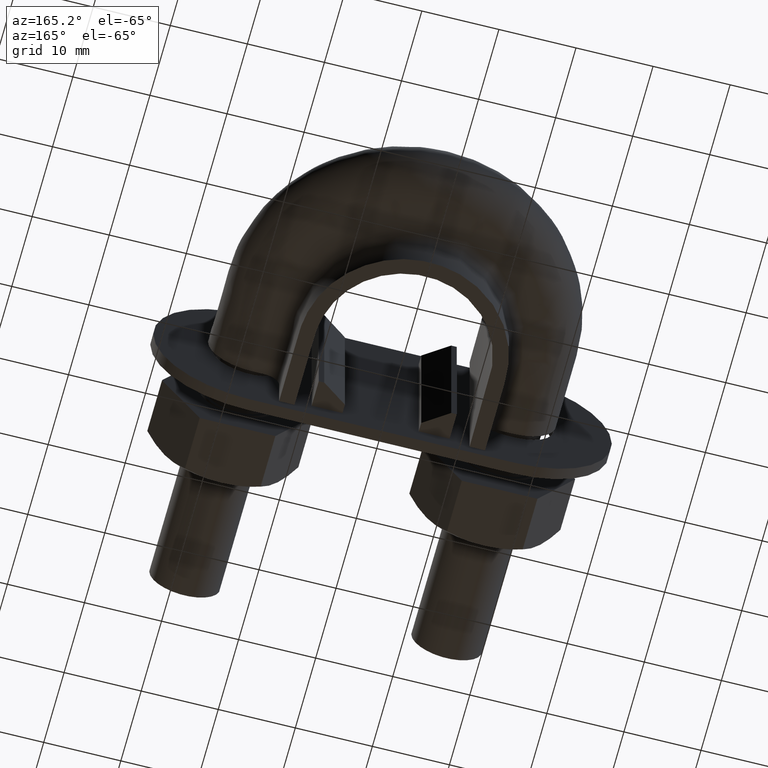
[diagram: clean part render]
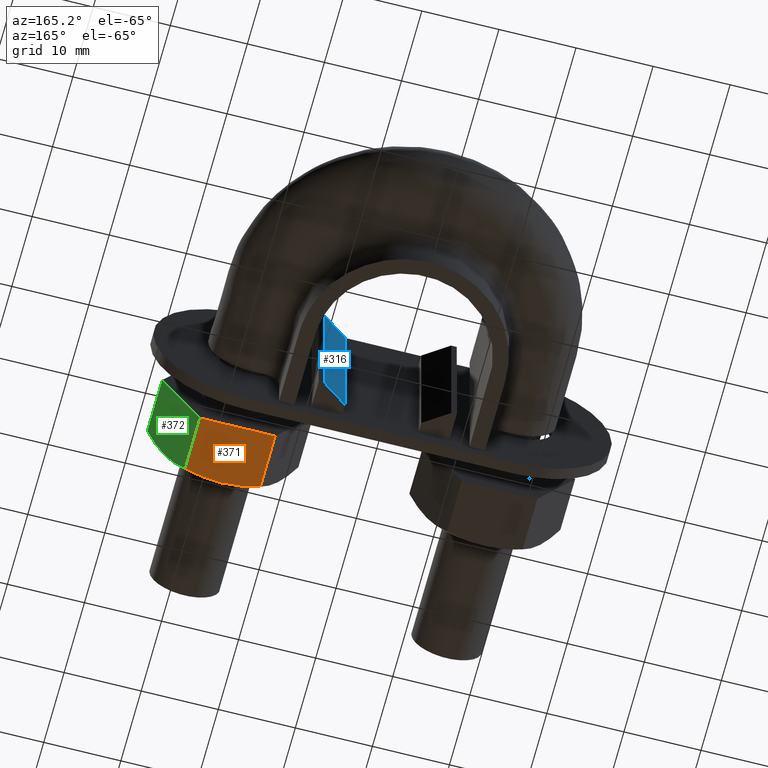
[diagram: same view with three faces highlighted in distinct colors, each labeled with its STEP entity id]
A machine part, auxiliary view with three faces highlighted in distinct colors.
Their STEP definitions:

[orange] entity #371 — the highlighted planar face has unit normal (0, 0, 1).
#371 = ADVANCED_FACE( '', ( #617 ), #618, .F. );
#617 = FACE_OUTER_BOUND( '', #1781, .T. );
#618 = PLANE( '', #1782 );
#1781 = EDGE_LOOP( '', ( #2570, #2571, #2572, #2573, #2574 ) );
#1782 = AXIS2_PLACEMENT_3D( '', #2575, #2576, #2577 );
#2570 = ORIENTED_EDGE( '', *, *, #2861, .F. );
#2571 = ORIENTED_EDGE( '', *, *, #2862, .F. );
#2572 = ORIENTED_EDGE( '', *, *, #2860, .F. );
#2573 = ORIENTED_EDGE( '', *, *, #2840, .F. );
#2574 = ORIENTED_EDGE( '', *, *, #2863, .F. );
#2575 = CARTESIAN_POINT( '', ( 21.9074772608674, 26.0000000000000, -8.50000001572733 ) );
#2576 = DIRECTION( '', ( 3.20504273121358E-009, 3.06151587670611E-016, 1.00000000000000 ) );
#2577 = DIRECTION( '', ( 2.44921270764475E-016, 1.00000000000000, -3.06151588455594E-016 ) );
#2840 = EDGE_CURVE( '', #3222, #3224, #3225, .T. );
#2860 = EDGE_CURVE( '', #3224, #3252, #3254, .F. );
#2861 = EDGE_CURVE( '', #3192, #3255, #3256, .T. );
#2862 = EDGE_CURVE( '', #3252, #3192, #3257, .T. );
#2863 = EDGE_CURVE( '', #3255, #3222, #3258, .T. );
#3192 = VERTEX_POINT( '', #3958 );
#3222 = VERTEX_POINT( '', #4005 );
#3224 = VERTEX_POINT( '', #4007 );
#3225 = LINE( '', #4008, #4009 );
#3252 = VERTEX_POINT( '', #4074 );
#3254 = LINE( '', #4076, #4077 );
#3255 = VERTEX_POINT( '', #4078 );
#3256 = B_SPLINE_CURVE_WITH_KNOTS( '', 3, ( #4079, #4080, #4081, #4082, #4083, #4084 ), .UNSPECIFIED., .F., .F., ( 4, 2, 4 ), ( 0.0156840426092143, 0.0181633795370665, 0.0206427164649186 ), .UNSPECIFIED. );
#3257 = B_SPLINE_CURVE_WITH_KNOTS( '', 3, ( #4085, #4086, #4087, #4088, #4089, #4090 ), .UNSPECIFIED., .F., .F., ( 4, 2, 4 ), ( 0.0107224888714687, 0.0132032657403415, 0.0156840426092143 ), .UNSPECIFIED. );
#3258 = LINE( '', #4091, #4092 );
#3958 = CARTESIAN_POINT( '', ( 16.9999999727571, 18.0000000000013, -8.49999999999866 ) );
#4005 = CARTESIAN_POINT( '', ( 21.8774993320585, 26.0000000000000, -8.50000001563125 ) );
#4007 = CARTESIAN_POINT( '', ( 12.1225006134558, 26.0000000000000, -8.49999998436606 ) );
#4008 = CARTESIAN_POINT( '', ( 7.19999997276027, 26.0000000000000, -8.49999996858924 ) );
#4009 = VECTOR( '', #4424, 999.999999999894 );
#4074 = CARTESIAN_POINT( '', ( 12.1225006134558, 18.7505553499477, -8.49999998436606 ) );
#4076 = CARTESIAN_POINT( '', ( 12.1225006134558, 26.0000000000000, -8.49999998436606 ) );
#4077 = VECTOR( '', #4449, 1000.00000000005 );
#4078 = CARTESIAN_POINT( '', ( 21.8774993320585, 18.7505553499477, -8.50000001563125 ) );
#4079 = CARTESIAN_POINT( '', ( 16.9999999727572, 18.0000000000015, -8.49999999999866 ) );
#4080 = CARTESIAN_POINT( '', ( 17.8345940136287, 18.0000000000015, -8.50000000267356 ) );
#4081 = CARTESIAN_POINT( '', ( 18.6590982459581, 18.0723104611278, -8.50000000531614 ) );
#4082 = CARTESIAN_POINT( '', ( 20.2828073957157, 18.3339943747747, -8.50000001052019 ) );
#4083 = CARTESIAN_POINT( '', ( 21.0838577849830, 18.5225028103106, -8.50000001308759 ) );
#4084 = CARTESIAN_POINT( '', ( 21.8774993320585, 18.7505553499477, -8.50000001563125 ) );
#4085 = CARTESIAN_POINT( '', ( 12.1225006134558, 18.7505553499477, -8.49999998436606 ) );
#4086 = CARTESIAN_POINT( '', ( 12.9171260398174, 18.5222200930427, -8.49999998691287 ) );
#4087 = CARTESIAN_POINT( '', ( 13.7187973504343, 18.3336547117187, -8.49999998948227 ) );
#4088 = CARTESIAN_POINT( '', ( 15.3426188033116, 18.0721149177832, -8.49999999468668 ) );
#4089 = CARTESIAN_POINT( '', ( 16.1649212191459, 18.0000000000015, -8.49999999732219 ) );
#4090 = CARTESIAN_POINT( '', ( 16.9999999727572, 18.0000000000015, -8.49999999999866 ) );
#4091 = CARTESIAN_POINT( '', ( 21.8774993320585, 26.0000000000000, -8.50000001563125 ) );
#4092 = VECTOR( '', #4450, 1000.00000000005 );
#4424 = DIRECTION( '', ( -1.00000000000000, 2.44921271745704E-016, 3.20504273121358E-009 ) );
#4449 = DIRECTION( '', ( 2.44921270764475E-016, 1.00000000000000, -3.06151588455594E-016 ) );
#4450 = DIRECTION( '', ( 2.44921270764475E-016, 1.00000000000000, -3.06151588455594E-016 ) );

[blue] entity #316 — the highlighted planar face has unit normal (-0.5736, 0.8192, 0).
#316 = ADVANCED_FACE( '', ( #500 ), #501, .T. );
#500 = FACE_OUTER_BOUND( '', #1664, .T. );
#501 = PLANE( '', #1665 );
#1664 = EDGE_LOOP( '', ( #2153, #2154, #2155, #2156 ) );
#1665 = AXIS2_PLACEMENT_3D( '', #2157, #2158, #2159 );
#2153 = ORIENTED_EDGE( '', *, *, #2738, .F. );
#2154 = ORIENTED_EDGE( '', *, *, #2737, .F. );
#2155 = ORIENTED_EDGE( '', *, *, #2739, .T. );
#2156 = ORIENTED_EDGE( '', *, *, #2740, .T. );
#2157 = CARTESIAN_POINT( '', ( 8.23474038345670, 35.3999999999955, -10.0000000263941 ) );
#2158 = DIRECTION( '', ( -0.573576436350990, 0.819152044289031, 1.83801571867427E-009 ) );
#2159 = DIRECTION( '', ( 0.819152044289031, 0.573576436350990, -2.62564213630165E-009 ) );
#2737 = EDGE_CURVE( '', #3052, #3050, #3054, .T. );
#2738 = EDGE_CURVE( '', #3050, #3055, #3056, .T. );
#2739 = EDGE_CURVE( '', #3052, #3057, #3058, .T. );
#2740 = EDGE_CURVE( '', #3057, #3055, #3059, .T. );
#3050 = VERTEX_POINT( '', #3688 );
#3052 = VERTEX_POINT( '', #3691 );
#3054 = LINE( '', #3694, #3695 );
#3055 = VERTEX_POINT( '', #3696 );
#3056 = LINE( '', #3697, #3698 );
#3057 = VERTEX_POINT( '', #3699 );
#3058 = LINE( '', #3700, #3701 );
#3059 = LINE( '', #3702, #3703 );
#3688 = CARTESIAN_POINT( '', ( 8.23474044755756, 35.4000000000033, 9.99999997360594 ) );
#3691 = CARTESIAN_POINT( '', ( 8.23474038345670, 35.3999999999955, -10.0000000263941 ) );
#3694 = CARTESIAN_POINT( '', ( 8.23474038345670, 35.3999999999955, -10.0000000263941 ) );
#3695 = VECTOR( '', #4265, 1000.00000000000 );
#3696 = CARTESIAN_POINT( '', ( 4.95000003205052, 33.1000000000035, 9.99999998413457 ) );
#3697 = CARTESIAN_POINT( '', ( 8.23474044755755, 35.4000000000033, 9.99999997360594 ) );
#3698 = VECTOR( '', #4266, 1000.00000000000 );
#3699 = CARTESIAN_POINT( '', ( 4.94999996794967, 33.0999999999957, -10.0000000158654 ) );
#3700 = CARTESIAN_POINT( '', ( 8.23474038345670, 35.3999999999955, -10.0000000263941 ) );
#3701 = VECTOR( '', #4267, 1000.00000000000 );
#3702 = CARTESIAN_POINT( '', ( 4.94999996794967, 33.0999999999957, -10.0000000158654 ) );
#3703 = VECTOR( '', #4268, 1000.00000000000 );
#4265 = DIRECTION( '', ( 3.20504262939720E-009, 3.92126285499763E-013, 1.00000000000000 ) );
#4266 = DIRECTION( '', ( -0.819152044289031, -0.573576436350990, 2.62564211762958E-009 ) );
#4267 = DIRECTION( '', ( -0.819152044289031, -0.573576436350990, 2.62564211762958E-009 ) );
#4268 = DIRECTION( '', ( 3.20504262939720E-009, 3.92126285499763E-013, 1.00000000000000 ) );

[green] entity #372 — the highlighted planar face has unit normal (-0.866, 0, 0.5).
#372 = ADVANCED_FACE( '', ( #619 ), #620, .F. );
#619 = FACE_OUTER_BOUND( '', #1783, .T. );
#620 = PLANE( '', #1784 );
#1783 = EDGE_LOOP( '', ( #2578, #2579, #2580, #2581, #2582 ) );
#1784 = AXIS2_PLACEMENT_3D( '', #2583, #2584, #2585 );
#2578 = ORIENTED_EDGE( '', *, *, #2831, .F. );
#2579 = ORIENTED_EDGE( '', *, *, #2864, .F. );
#2580 = ORIENTED_EDGE( '', *, *, #2865, .F. );
#2581 = ORIENTED_EDGE( '', *, *, #2838, .F. );
#2582 = ORIENTED_EDGE( '', *, *, #2858, .F. );
#2583 = CARTESIAN_POINT( '', ( 26.8149545762205, 26.0000000000000, -3.14573569224780E-008 ) );
#2584 = DIRECTION( '', ( -0.866025402181883, 3.65183837094287E-016, 0.500000002775708 ) );
#2585 = DIRECTION( '', ( 0.500000002775708, 1.42674416458811E-016, 0.866025402181883 ) );
#2831 = EDGE_CURVE( '', #3194, #3207, #3208, .T. );
#2838 = EDGE_CURVE( '', #3218, #3220, #3221, .T. );
#2858 = EDGE_CURVE( '', #3207, #3218, #3251, .T. );
#2864 = EDGE_CURVE( '', #3259, #3194, #3260, .T. );
#2865 = EDGE_CURVE( '', #3220, #3259, #3261, .F. );
#3194 = VERTEX_POINT( '', #3960 );
#3207 = VERTEX_POINT( '', #3981 );
#3208 = B_SPLINE_CURVE_WITH_KNOTS( '', 3, ( #3982, #3983, #3984, #3985, #3986, #3987, #3988, #3989 ), .UNSPECIFIED., .F., .F., ( 4, 2, 2, 4 ), ( 0.00493529902949268, 0.00616408349151648, 0.00739286795354028, 0.00985043687758788 ), .UNSPECIFIED. );
#3218 = VERTEX_POINT( '', #4000 );
#3220 = VERTEX_POINT( '', #4002 );
#3221 = LINE( '', #4003, #4004 );
#3251 = LINE( '', #4072, #4073 );
#3259 = VERTEX_POINT( '', #4093 );
#3260 = B_SPLINE_CURVE_WITH_KNOTS( '', 3, ( #4094, #4095, #4096, #4097, #4098, #4099 ), .UNSPECIFIED., .F., .F., ( 4, 2, 4 ), ( 7.17194508351764E-007, 0.00246800811200051, 0.00493529902949268 ), .UNSPECIFIED. );
#3261 = LINE( '', #4100, #4101 );
#3960 = CARTESIAN_POINT( '', ( 24.3612159185440, 18.0000000000013, -4.25000002359234 ) );
#3981 = CARTESIAN_POINT( '', ( 26.7999656117328, 18.7505553499477, -0.0259616793106891 ) );
#3982 = CARTESIAN_POINT( '', ( 24.3612159185433, 18.0000000000006, -4.25000002359209 ) );
#3983 = CARTESIAN_POINT( '', ( 24.5680707335671, 18.0000000000006, -3.89171697683265 ) );
#3984 = CARTESIAN_POINT( '', ( 24.7759593316470, 18.0177112141225, -3.53164336530918 ) );
#3985 = CARTESIAN_POINT( '', ( 25.1872154239575, 18.0863020976804, -2.81932692377764 ) );
#3986 = CARTESIAN_POINT( '', ( 25.3914764832610, 18.1371114863345, -2.46553639367481 ) );
#3987 = CARTESIAN_POINT( '', ( 26.0006497700346, 18.3331491064661, -1.41041731817905 ) );
#3988 = CARTESIAN_POINT( '', ( 26.4019654954757, 18.5218250443855, -0.715318096983827 ) );
#3989 = CARTESIAN_POINT( '', ( 26.7999656117329, 18.7505553499470, -0.0259616793105971 ) );
#4000 = CARTESIAN_POINT( '', ( 26.7999656117328, 26.0000000000000, -0.0259616793106938 ) );
#4002 = CARTESIAN_POINT( '', ( 21.9224662253551, 26.0000000000000, -8.47403836787399 ) );
#4003 = CARTESIAN_POINT( '', ( 21.9112159049441, 26.0000000000000, -8.49352449428307 ) );
#4004 = VECTOR( '', #4420, 1000.00000000001 );
#4072 = CARTESIAN_POINT( '', ( 26.7999656117328, 26.0000000000000, -0.0259616793106932 ) );
#4073 = VECTOR( '', #4445, 1000.00000000005 );
#4093 = CARTESIAN_POINT( '', ( 21.9224662253551, 18.7505553499477, -8.47403836787399 ) );
#4094 = CARTESIAN_POINT( '', ( 21.9224662253539, 18.7505553499470, -8.47403836787340 ) );
#4095 = CARTESIAN_POINT( '', ( 22.3215179943411, 18.5212206605160, -7.78286043425322 ) );
#4096 = CARTESIAN_POINT( '', ( 22.7234520897651, 18.3324529479810, -7.08669016483760 ) );
#4097 = CARTESIAN_POINT( '', ( 23.5355975556421, 18.0714150925765, -5.68001296521408 ) );
#4098 = CARTESIAN_POINT( '', ( 23.9458696783190, 18.0000000000006, -4.96940080906840 ) );
#4099 = CARTESIAN_POINT( '', ( 24.3612159185433, 18.0000000000006, -4.25000002359209 ) );
#4100 = CARTESIAN_POINT( '', ( 21.9224662253551, 26.0000000000000, -8.47403836787400 ) );
#4101 = VECTOR( '', #4451, 1000.00000000005 );
#4420 = DIRECTION( '', ( -0.500000002775588, -1.42674416458861E-016, -0.866025402181952 ) );
#4445 = DIRECTION( '', ( 2.44921270764475E-016, 1.00000000000000, -3.06151588455594E-016 ) );
#4451 = DIRECTION( '', ( 2.44921270764475E-016, 1.00000000000000, -3.06151588455594E-016 ) );